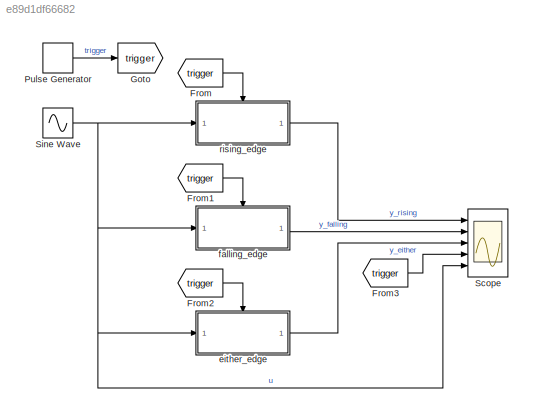
MODEL slx_e89d1df66682
KIND model
CONFIG AbsTol = auto
CONFIG EnableMultiTasking = on
CONFIG FixedStep = auto
CONFIG MaxStep = auto
CONFIG MinStep = auto
CONFIG RelTol = 1e-3
CONFIG SampleTimeConstraint = Unconstrained
CONFIG Solver = ode45
CONFIG SolverName = ode45
CONFIG StartTime = 0.0
CONFIG StopTime = 10.0
BLOCK [From] From
  GotoTag = trigger
BLOCK [From] From1
  GotoTag = trigger
BLOCK [From] From2
  GotoTag = trigger
BLOCK [From] From3
  GotoTag = trigger
BLOCK [Goto] Goto
  GotoTag = trigger
BLOCK [DiscretePulseGenerator] Pulse Generator
  Amplitude = 4
  Ports = [0, 1]
  PulseType = Time based
  PulseWidth = 50
BLOCK [Scope] Scope
  Floating = off
  NumInputPorts = 5
  Ports = [5]
  ScopeSpecificationString = Simulink.scopes.TimeScopeBlockCfg('CurrentConfiguration', extmgr.ConfigurationSet(extmgr.Configuration('Core','General UI',true),extmgr.Configuration('Core','Source UI',true),extmgr.Configuration('Sources','WiredSimulink',true,'DataLoggingVariableName','ScopeData1','DataLoggingSaveFormat','StructureWithTime','DataLoggingLimitDataPoints',true,'DataLoggingDecimation','1','DataLoggingDecimateData',tr...<+4516ch>
BLOCK [Sin] Sine Wave
  Amplitude = 4
  Ports = [0, 1]
  SampleTime = 0
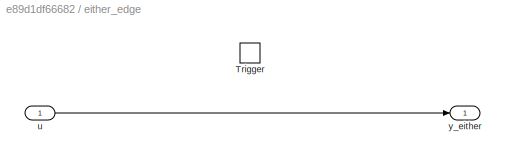
BLOCK [SubSystem] either_edge
  Ports = [1, 1, 0, 1]
  RequestExecContextInheritance = off
  TreatAsAtomicUnit = on
BLOCK [TriggerPort] either_edge/Trigger
  Ports = []
  TriggerType = either
  VariantControl = Variant
BLOCK [Inport] either_edge/u
  IconDisplay = Port number
BLOCK [Outport] either_edge/y_either
  IconDisplay = Port number
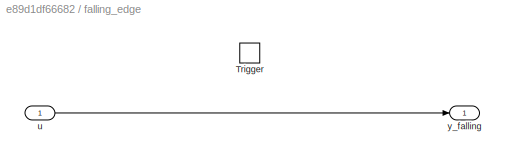
BLOCK [SubSystem] falling_edge
  Ports = [1, 1, 0, 1]
  RequestExecContextInheritance = off
  TreatAsAtomicUnit = on
BLOCK [TriggerPort] falling_edge/Trigger
  Ports = []
  TriggerType = falling
  VariantControl = Variant
BLOCK [Inport] falling_edge/u
  IconDisplay = Port number
BLOCK [Outport] falling_edge/y_falling
  IconDisplay = Port number
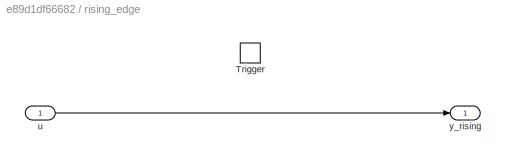
BLOCK [SubSystem] rising_edge
  Ports = [1, 1, 0, 1]
  RequestExecContextInheritance = off
  TreatAsAtomicUnit = on
BLOCK [TriggerPort] rising_edge/Trigger
  Ports = []
  VariantControl = Variant
BLOCK [Inport] rising_edge/u
  IconDisplay = Port number
BLOCK [Outport] rising_edge/y_rising
  IconDisplay = Port number
LINE From1:1 -> falling_edge:trigger
LINE From2:1 -> either_edge:trigger
LINE From3:1 -> Scope:4
LINE From:1 -> rising_edge:trigger
LINE Pulse Generator:1 -> Goto:1
NET Sine Wave:1 -> Scope:5, either_edge:1, falling_edge:1, rising_edge:1
LINE either_edge/u:1 -> either_edge/y_either:1
LINE either_edge:1 -> Scope:3
LINE falling_edge/u:1 -> falling_edge/y_falling:1
LINE falling_edge:1 -> Scope:2
LINE rising_edge/u:1 -> rising_edge/y_rising:1
LINE rising_edge:1 -> Scope:1
note: NET lines group one-source signal fan-out (src -> all destinations, sorted); 1:1 wires keep LINE
